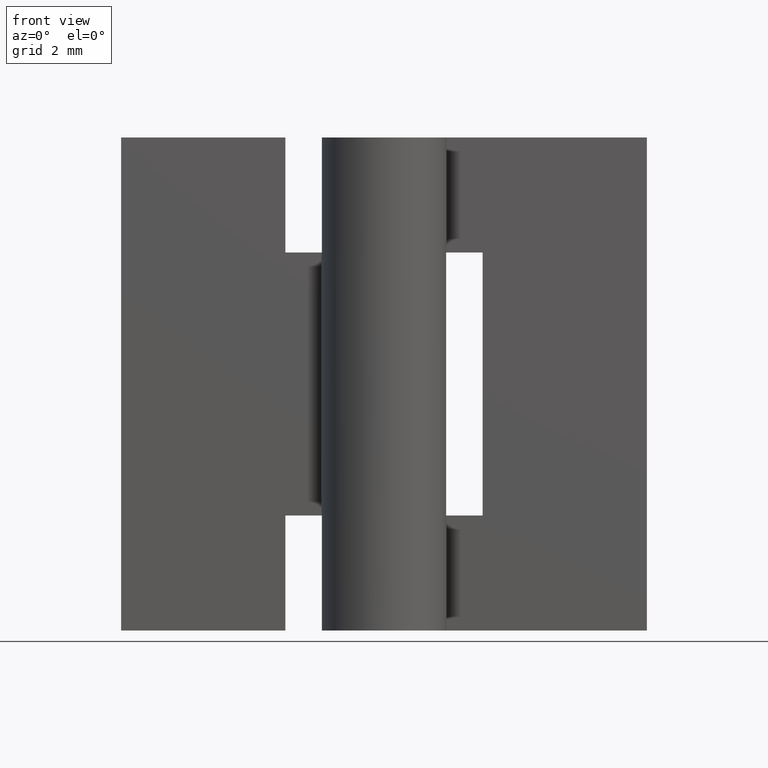
[diagram: clean part render]
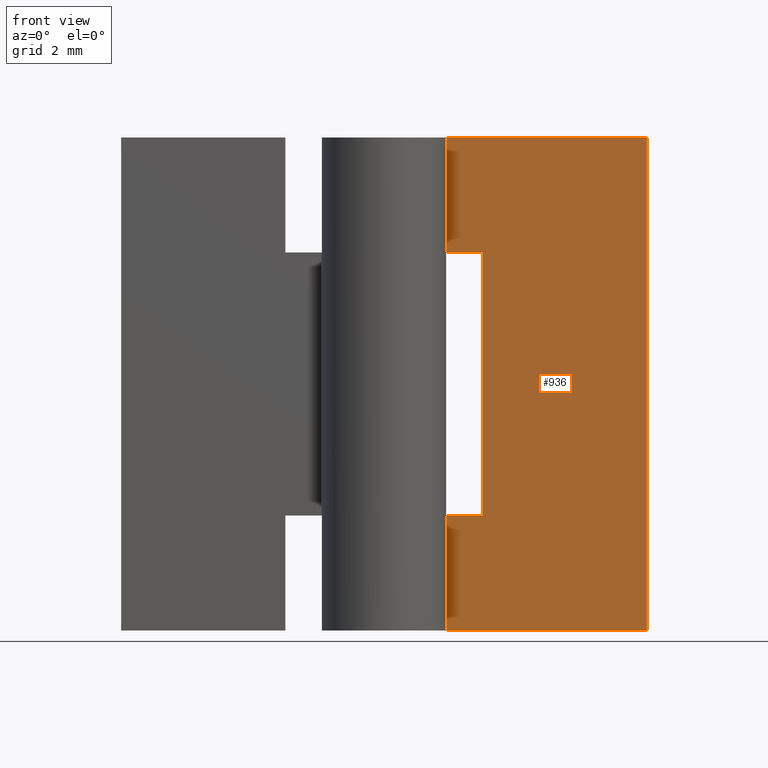
[diagram: same view with one face highlighted and labeled with its STEP entity id]
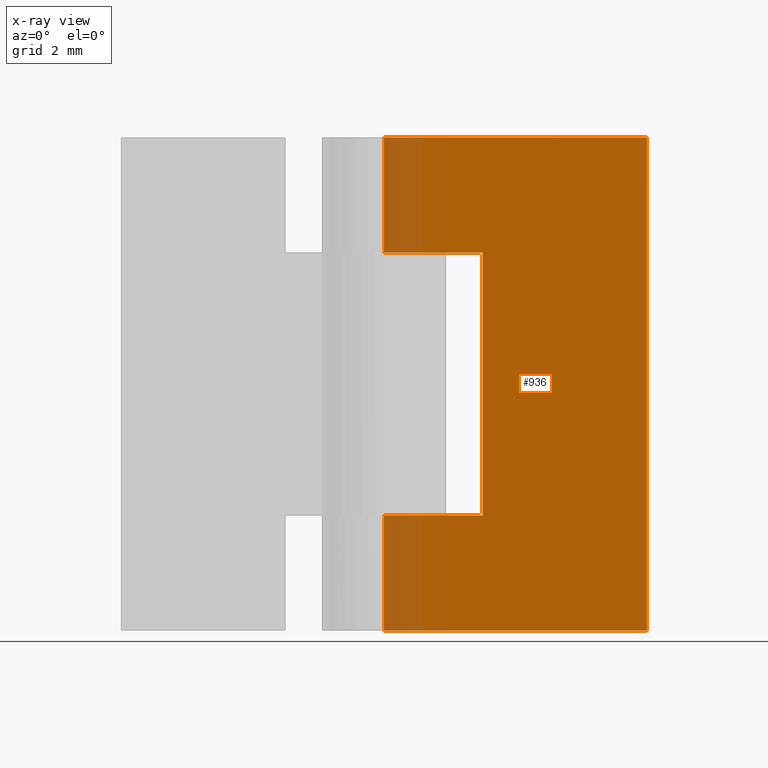
[diagram: x-ray of the same camera — body ghosted, the highlighted face saturated]
A machine part, front view. The second image highlights one B-rep face of the part: STEP entity #936.
The next image is the same camera in x-ray: the body ghosted, the highlighted face saturated — about 9% of this face is hidden behind the body in this view.
In plain terms, the highlighted face is a freeform B-spline surface patch.
Its self-contained STEP definition (entity closure, byte-faithful):
#496=CARTESIAN_POINT('',(0.0,0.900002000000000,3.500000000000060));
#497=VERTEX_POINT('',#496);
#498=CARTESIAN_POINT('',(3.0,0.900001999999955,3.500000000000000));
#499=VERTEX_POINT('',#498);
#500=CARTESIAN_POINT('',(0.0,0.900002000000000,3.500000000000060));
#501=CARTESIAN_POINT('',(3.0,0.900001999999955,3.500000000000000));
#502=QUASI_UNIFORM_CURVE('',1,(#500,#501),.UNSPECIFIED.,.F.,.U.);
#503=EDGE_CURVE('',#497,#499,#502,.T.);
#574=CARTESIAN_POINT('',(3.0,0.900001999999955,11.500000000000000));
#575=VERTEX_POINT('',#574);
#576=CARTESIAN_POINT('',(3.0,0.900001999999955,3.500000000000000));
#577=CARTESIAN_POINT('',(3.0,0.900001999999955,11.500000000000000));
#578=QUASI_UNIFORM_CURVE('',1,(#576,#577),.UNSPECIFIED.,.F.,.U.);
#579=EDGE_CURVE('',#499,#575,#578,.T.);
#602=CARTESIAN_POINT('',(0.0,0.900002000000000,11.500000000000000));
#603=VERTEX_POINT('',#602);
#604=CARTESIAN_POINT('',(3.0,0.900001999999955,11.500000000000000));
#605=CARTESIAN_POINT('',(0.0,0.900002000000000,11.500000000000000));
#606=QUASI_UNIFORM_CURVE('',1,(#604,#605),.UNSPECIFIED.,.F.,.U.);
#607=EDGE_CURVE('',#575,#603,#606,.T.);
#681=CARTESIAN_POINT('',(8.0,0.900002000000000,0.0));
#682=VERTEX_POINT('',#681);
#688=CARTESIAN_POINT('',(0.0,0.900002000000000,0.0));
#689=VERTEX_POINT('',#688);
#690=CARTESIAN_POINT('',(8.0,0.900002000000000,0.0));
#691=CARTESIAN_POINT('',(0.0,0.900002000000000,0.0));
#692=QUASI_UNIFORM_CURVE('',1,(#690,#691),.UNSPECIFIED.,.F.,.U.);
#693=EDGE_CURVE('',#682,#689,#692,.T.);
#787=CARTESIAN_POINT('',(0.0,0.900002000000000,15.0));
#788=VERTEX_POINT('',#787);
#808=CARTESIAN_POINT('',(8.0,0.900002000000000,15.0));
#809=VERTEX_POINT('',#808);
#810=CARTESIAN_POINT('',(8.0,0.900002000000000,15.0));
#811=CARTESIAN_POINT('',(0.0,0.900002000000000,15.0));
#812=QUASI_UNIFORM_CURVE('',1,(#810,#811),.UNSPECIFIED.,.F.,.U.);
#813=EDGE_CURVE('',#809,#788,#812,.T.);
#902=CARTESIAN_POINT('',(0.0,0.900002000000000,3.500000000000060));
#903=CARTESIAN_POINT('',(0.0,0.900002000000000,0.0));
#904=QUASI_UNIFORM_CURVE('',1,(#902,#903),.UNSPECIFIED.,.F.,.U.);
#905=EDGE_CURVE('',#497,#689,#904,.T.);
#913=CARTESIAN_POINT('',(-0.399599984494448,0.900002000000000,15.749249970927091));
#914=CARTESIAN_POINT('',(-0.399599984494448,0.900002000000000,-0.749250373258442));
#915=CARTESIAN_POINT('',(8.399600199071170,0.900002000000000,15.749249970927091));
#916=CARTESIAN_POINT('',(8.399600199071170,0.900002000000000,-0.749250373258442));
#917=B_SPLINE_SURFACE_WITH_KNOTS('',1,1,((#913,#915),(#914,#916)),.UNSPECIFIED.,.F.,.F.,.U.,(2,2),(2,2),(0.0,16.498500344185530),(0.0,8.799200183565617),.UNSPECIFIED.);
#918=ORIENTED_EDGE('',*,*,#607,.F.);
#919=ORIENTED_EDGE('',*,*,#579,.F.);
#920=ORIENTED_EDGE('',*,*,#503,.F.);
#921=ORIENTED_EDGE('',*,*,#905,.T.);
#922=ORIENTED_EDGE('',*,*,#693,.F.);
#923=CARTESIAN_POINT('',(8.0,0.900002000000000,15.0));
#924=CARTESIAN_POINT('',(8.0,0.900002000000000,0.0));
#925=QUASI_UNIFORM_CURVE('',1,(#923,#924),.UNSPECIFIED.,.F.,.U.);
#926=EDGE_CURVE('',#809,#682,#925,.T.);
#927=ORIENTED_EDGE('',*,*,#926,.F.);
#928=ORIENTED_EDGE('',*,*,#813,.T.);
#929=CARTESIAN_POINT('',(0.0,0.900002000000000,15.0));
#930=CARTESIAN_POINT('',(0.0,0.900002000000000,11.500000000000000));
#931=QUASI_UNIFORM_CURVE('',1,(#929,#930),.UNSPECIFIED.,.F.,.U.);
#932=EDGE_CURVE('',#788,#603,#931,.T.);
#933=ORIENTED_EDGE('',*,*,#932,.T.);
#934=EDGE_LOOP('',(#918,#919,#920,#921,#922,#927,#928,#933));
#935=FACE_OUTER_BOUND('',#934,.T.);
#936=ADVANCED_FACE('',(#935),#917,.T.);